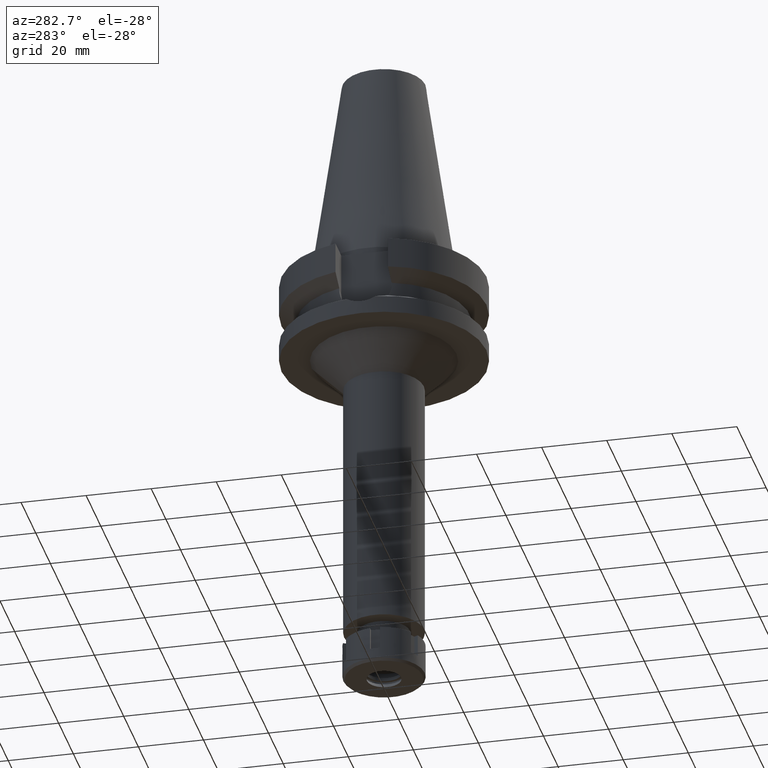
[diagram: clean part render]
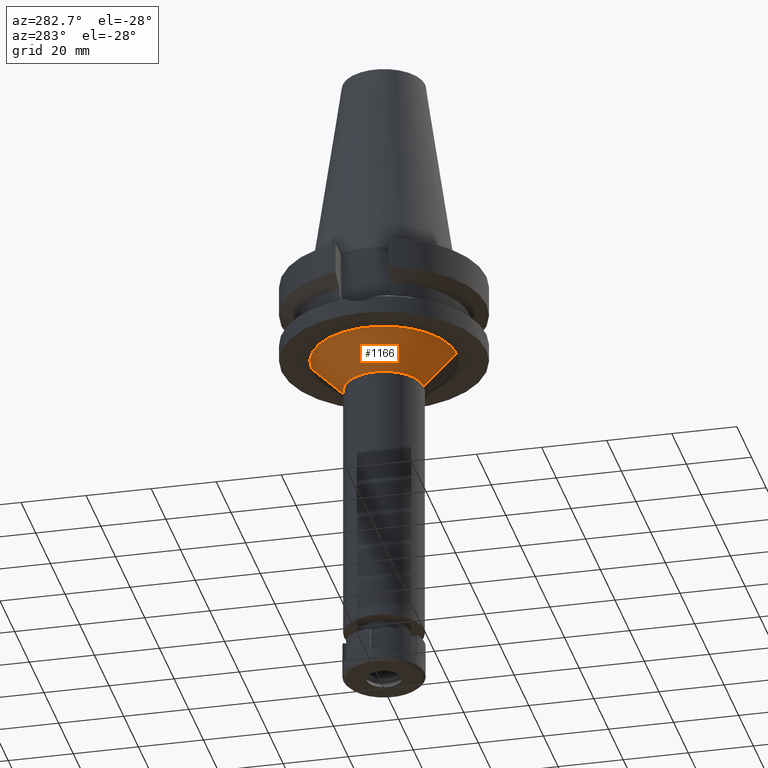
[diagram: same view with one face highlighted and labeled with its STEP entity id]
A machine part, auxiliary view. The second image highlights one B-rep face of the part: STEP entity #1166.
In plain terms, the highlighted conical surface has half-angle 45 deg.
Its self-contained STEP definition (entity closure, byte-faithful):
#441 = FACE_OUTER_BOUND ( 'NONE', #723, .T. ) ;
#498 = EDGE_CURVE ( 'NONE', #3448, #3041, #3463, .T. ) ;
#525 = VERTEX_POINT ( 'NONE', #1742 ) ;
#710 = EDGE_CURVE ( 'NONE', #525, #3312, #2403, .T. ) ;
#723 = EDGE_LOOP ( 'NONE', ( #2496, #2745, #2539, #1163 ) ) ;
#863 = DIRECTION ( 'NONE',  ( 0.0000000000000000000, -0.7071067811865474617, -0.7071067811865474617 ) ) ;
#894 = EDGE_CURVE ( 'NONE', #3041, #3312, #3362, .T. ) ;
#908 = DIRECTION ( 'NONE',  ( 0.0000000000000000000, 0.0000000000000000000, -1.000000000000000000 ) ) ;
#923 = DIRECTION ( 'NONE',  ( 0.0000000000000000000, -1.000000000000000000, 0.0000000000000000000 ) ) ;
#954 = EDGE_CURVE ( 'NONE', #3448, #525, #2838, .T. ) ;
#1163 = ORIENTED_EDGE ( 'NONE', *, *, #894, .T. ) ;
#1166 = ADVANCED_FACE ( 'NONE', ( #441 ), #1345, .T. ) ;
#1345 = CONICAL_SURFACE ( 'NONE', #1528, 17.25000000000000000, 0.7853981633972997312 ) ;
#1476 = AXIS2_PLACEMENT_3D ( 'NONE', #1498, #908, #923 ) ;
#1498 = CARTESIAN_POINT ( 'NONE',  ( 0.0000000000000000000, 0.0000000000000000000, -27.00000000000000000 ) ) ;
#1528 = AXIS2_PLACEMENT_3D ( 'NONE', #3591, #2429, #2447 ) ;
#1742 = CARTESIAN_POINT ( 'NONE',  ( 0.0000000000000000000, -12.25000000000000000, -37.00000000000000000 ) ) ;
#1750 = CARTESIAN_POINT ( 'NONE',  ( 0.0000000000000000000, 22.25000000000000000, -27.00000000000000000 ) ) ;
#2236 = VECTOR ( 'NONE', #863, 1000.000000000000114 ) ;
#2266 = CARTESIAN_POINT ( 'NONE',  ( 0.0000000000000000000, -22.25000000000000000, -27.00000000000000000 ) ) ;
#2403 = CIRCLE ( 'NONE', #2982, 12.25000000000000000 ) ;
#2426 = DIRECTION ( 'NONE',  ( 0.0000000000000000000, 0.0000000000000000000, -1.000000000000000000 ) ) ;
#2429 = DIRECTION ( 'NONE',  ( 0.0000000000000000000, 0.0000000000000000000, 1.000000000000000000 ) ) ;
#2437 = CARTESIAN_POINT ( 'NONE',  ( 0.0000000000000000000, -22.25000000000000000, -27.00000000000000000 ) ) ;
#2447 = DIRECTION ( 'NONE',  ( 0.0000000000000000000, 1.000000000000000000, 0.0000000000000000000 ) ) ;
#2496 = ORIENTED_EDGE ( 'NONE', *, *, #710, .F. ) ;
#2539 = ORIENTED_EDGE ( 'NONE', *, *, #498, .T. ) ;
#2578 = DIRECTION ( 'NONE',  ( 0.0000000000000000000, 0.7071067811865474617, -0.7071067811865474617 ) ) ;
#2699 = CARTESIAN_POINT ( 'NONE',  ( 0.0000000000000000000, 0.0000000000000000000, -37.00000000000000000 ) ) ;
#2745 = ORIENTED_EDGE ( 'NONE', *, *, #954, .F. ) ;
#2804 = CARTESIAN_POINT ( 'NONE',  ( 0.0000000000000000000, 22.25000000000000000, -27.00000000000000000 ) ) ;
#2838 = LINE ( 'NONE', #2266, #3221 ) ;
#2920 = CARTESIAN_POINT ( 'NONE',  ( 0.0000000000000000000, 12.25000000000000000, -37.00000000000000000 ) ) ;
#2982 = AXIS2_PLACEMENT_3D ( 'NONE', #2699, #2426, #3218 ) ;
#3041 = VERTEX_POINT ( 'NONE', #2804 ) ;
#3218 = DIRECTION ( 'NONE',  ( 0.0000000000000000000, -1.000000000000000000, 0.0000000000000000000 ) ) ;
#3221 = VECTOR ( 'NONE', #2578, 1000.000000000000114 ) ;
#3312 = VERTEX_POINT ( 'NONE', #2920 ) ;
#3362 = LINE ( 'NONE', #1750, #2236 ) ;
#3448 = VERTEX_POINT ( 'NONE', #2437 ) ;
#3463 = CIRCLE ( 'NONE', #1476, 22.25000000000000000 ) ;
#3591 = CARTESIAN_POINT ( 'NONE',  ( 0.0000000000000000000, 0.0000000000000000000, -32.00000000000000000 ) ) ;